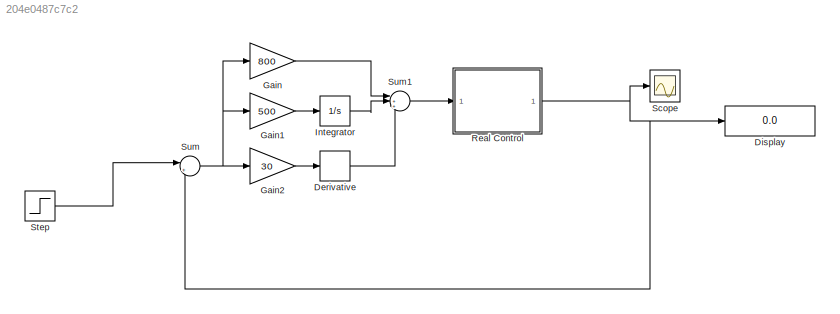
MODEL slx_204e0487c7c2
KIND model
CONFIG AbsTol = auto
CONFIG EnableMultiTasking = on
CONFIG FixedStep = 0.001
CONFIG MaxStep = auto
CONFIG MinStep = auto
CONFIG RelTol = 1e-3
CONFIG SampleTimeConstraint = Unconstrained
CONFIG SolverName = ode4
CONFIG StartTime = 0.0
CONFIG StopTime = inf
BLOCK [Derivative] Derivative
BLOCK [Display] Display
  Decimation = 1
  Ports = [1]
BLOCK [Gain] Gain
  Gain = 800
  OutDataTypeStr = Inherit: Inherit via internal rule
  ParamDataTypeStr = Inherit: Inherit via internal rule
  SaturateOnIntegerOverflow = off
BLOCK [Gain] Gain1
  Gain = 500
  OutDataTypeStr = Inherit: Inherit via internal rule
  ParamDataTypeStr = Inherit: Inherit via internal rule
  SaturateOnIntegerOverflow = off
BLOCK [Gain] Gain2
  Gain = 30
  OutDataTypeStr = Inherit: Inherit via internal rule
  ParamDataTypeStr = Inherit: Inherit via internal rule
  SaturateOnIntegerOverflow = off
BLOCK [Integrator] Integrator
  Ports = [1, 1]
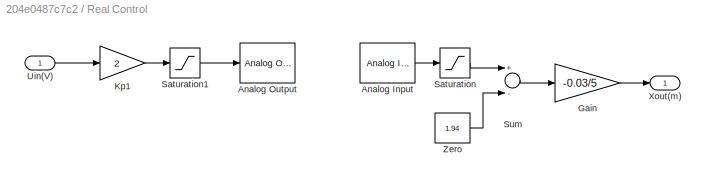
BLOCK [SubSystem] Real Control
  Ports = [1, 1]
  RequestExecContextInheritance = off
BLOCK [Reference] Real Control/Analog Input  REF=rtwinlib/Analog Input
  AttributesFormatString = Advantech\nPCI-1711 [auto]
  Channels = 1
  DataType = 1
  DrvAddress = 4294967295
  DrvName = Advantech/PCI-1711
  DrvOptions = zeros(1,0)
  MaxMissedTicks = 10
  Ports = [0, 1]
  RangeMode = 1
  SampleTime = 0.001
  ShowMissedTicks = off
  SourceBlock = rtwinlib/Analog Input
  SourceType = RTWin Analog Input
  VoltRange = 2
  YieldWhenWaiting = off
BLOCK [Reference] Real Control/Analog Output  REF=rtwinlib/Analog Output
  AttributesFormatString = Advantech\nPCI-1711 [auto]
  Channels = 1
  DrvAddress = 4294967295
  DrvName = Advantech/PCI-1711
  DrvOptions = zeros(1,0)
  FinalValue = -10
  InitialValue = -10
  MaxMissedTicks = 10
  Ports = [1]
  RangeMode = 1
  SampleTime = 0.001
  ShowMissedTicks = off
  SourceBlock = rtwinlib/Analog Output
  SourceType = RTWin Analog Output
  VoltRange = 2
  YieldWhenWaiting = off
BLOCK [Gain] Real Control/Gain
  Gain = -0.03/5
BLOCK [Gain] Real Control/Kp1
  Gain = 2
BLOCK [Saturate] Real Control/Saturation
  InputPortMap = u0
  LowerLimit = 0
  Ports = [1, 1]
  UpperLimit = 5
BLOCK [Saturate] Real Control/Saturation1
  InputPortMap = u0
  LowerLimit = 0
  Ports = [1, 1]
  UpperLimit = 10
BLOCK [Sum] Real Control/Sum
  InputSameDT = off
  Inputs = +-
  Ports = [2, 1]
BLOCK [Inport] Real Control/Uin(V)
  IconDisplay = Port number
BLOCK [Outport] Real Control/Xout(m)
  IconDisplay = Port number
BLOCK [Constant] Real Control/Zero
  SampleTime = -1
  Value = 1.94
BLOCK [Scope] Scope
  Floating = off
  NumInputPorts = 1
  Ports = [1]
  ShowLegends = off
  YMax = -0.008
  YMin = -0.02
BLOCK [Step] Step
  After = -0.009
  Before = -0.01
  SampleTime = 0
  Time = 10
BLOCK [Sum] Sum
  IconShape = round
  InputSameDT = off
  Inputs = |+-
  OutDataTypeStr = Inherit: Inherit via internal rule
  Ports = [2, 1]
  SaturateOnIntegerOverflow = off
BLOCK [Sum] Sum1
  IconShape = round
  InputSameDT = off
  Inputs = |+++
  OutDataTypeStr = Inherit: Inherit via internal rule
  Ports = [3, 1]
  SaturateOnIntegerOverflow = off
LINE Derivative:1 -> Sum1:3
LINE Gain1:1 -> Integrator:1
LINE Gain2:1 -> Derivative:1
LINE Gain:1 -> Sum1:1
LINE Integrator:1 -> Sum1:2
LINE Real Control/Analog Input:1 -> Real Control/Saturation:1
LINE Real Control/Gain:1 -> Real Control/Xout(m):1
LINE Real Control/Kp1:1 -> Real Control/Saturation1:1
LINE Real Control/Saturation1:1 -> Real Control/Analog Output:1
LINE Real Control/Saturation:1 -> Real Control/Sum:1
LINE Real Control/Sum:1 -> Real Control/Gain:1
LINE Real Control/Uin(V):1 -> Real Control/Kp1:1
LINE Real Control/Zero:1 -> Real Control/Sum:2
NET Real Control:1 -> Display:1, Scope:1, Sum:2
LINE Step:1 -> Sum:1
LINE Sum1:1 -> Real Control:1
NET Sum:1 -> Gain1:1, Gain2:1, Gain:1
note: NET lines group one-source signal fan-out (src -> all destinations, sorted); 1:1 wires keep LINE
